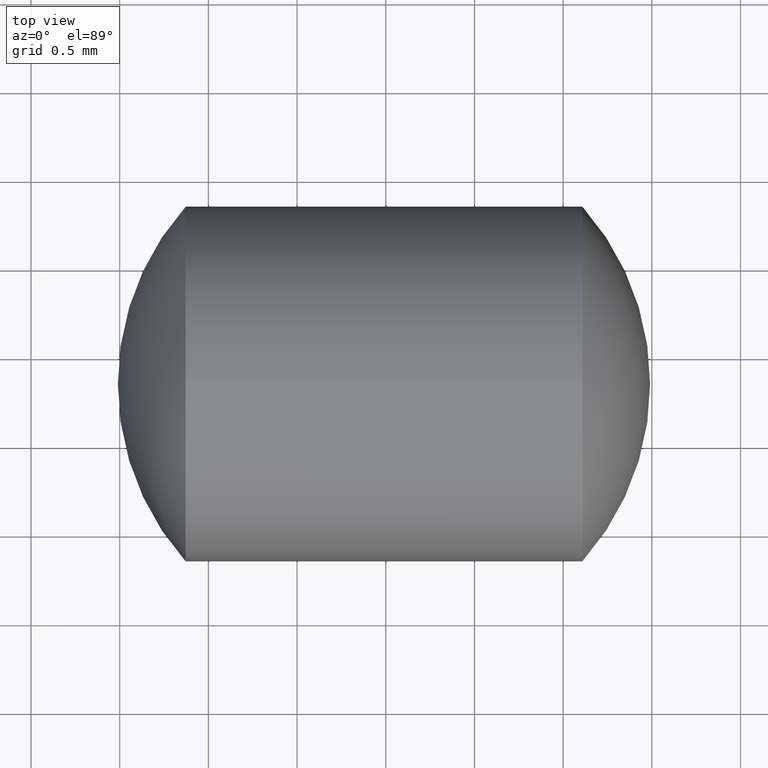
[diagram: clean part render]
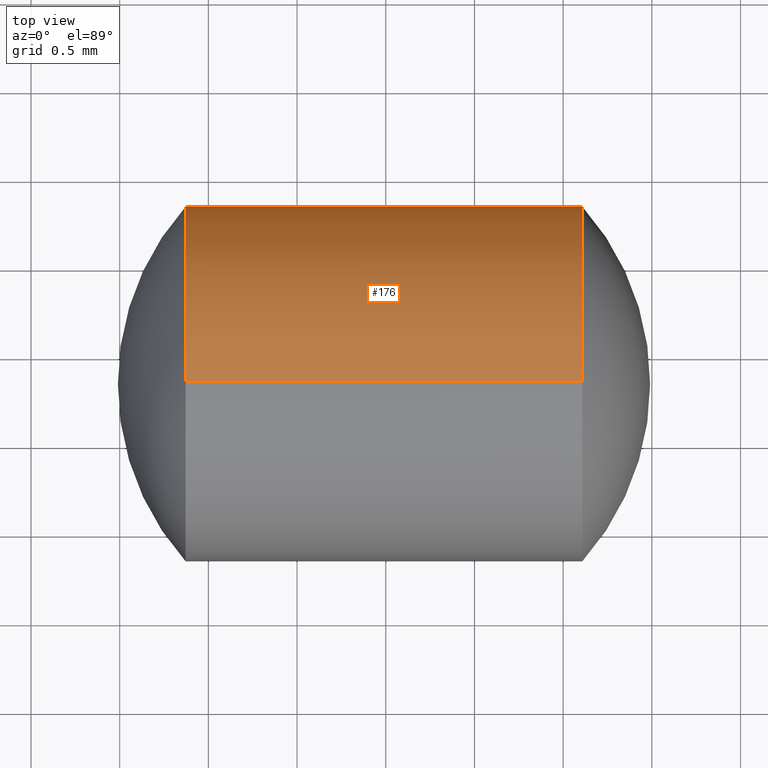
[diagram: same view with one face highlighted and labeled with its STEP entity id]
A machine part, top view. The second image highlights one B-rep face of the part: STEP entity #176.
In plain terms, the highlighted cylindrical surface (partial cylindrical patch) has radius 1 mm, axis along (-1, -0, -0).
Its self-contained STEP definition (entity closure, byte-faithful):
#3 = CARTESIAN_POINT ( 'NONE',  ( 232.2484920441100100, 133.3448637497280600, -1.000000000000000900 ) ) ;
#9 = DIRECTION ( 'NONE',  ( 0.0000000000000000000, 0.0000000000000000000, 1.000000000000000000 ) ) ;
#10 = CARTESIAN_POINT ( 'NONE',  ( 232.8719949570514700, 133.3448637497280600, 0.0000000000000000000 ) ) ;
#26 = EDGE_CURVE ( 'NONE', #54, #275, #186, .T. ) ;
#36 = DIRECTION ( 'NONE',  ( 0.0000000000000000000, 0.0000000000000000000, 1.000000000000000000 ) ) ;
#46 = EDGE_CURVE ( 'NONE', #54, #264, #235, .T. ) ;
#50 = AXIS2_PLACEMENT_3D ( 'NONE', #158, #184, #160 ) ;
#53 = CIRCLE ( 'NONE', #213, 1.000000000000000900 ) ;
#54 = VERTEX_POINT ( 'NONE', #337 ) ;
#59 = DIRECTION ( 'NONE',  ( 0.0000000000000000000, 0.0000000000000000000, 1.000000000000000000 ) ) ;
#61 = CARTESIAN_POINT ( 'NONE',  ( 232.8719949570514700, 133.3448637497280600, 1.000000000000000900 ) ) ;
#81 = ORIENTED_EDGE ( 'NONE', *, *, #170, .F. ) ;
#84 = DIRECTION ( 'NONE',  ( 0.0000000000000000000, 0.0000000000000000000, 1.000000000000000000 ) ) ;
#89 = LINE ( 'NONE', #3, #286 ) ;
#98 = EDGE_CURVE ( 'NONE', #150, #331, #89, .T. ) ;
#104 = CARTESIAN_POINT ( 'NONE',  ( 235.1080629345512700, 133.3448637497280600, -1.000000000000000900 ) ) ;
#111 = DIRECTION ( 'NONE',  ( -1.000000000000000000, -0.0000000000000000000, -0.0000000000000000000 ) ) ;
#122 = AXIS2_PLACEMENT_3D ( 'NONE', #218, #244, #84 ) ;
#123 = ORIENTED_EDGE ( 'NONE', *, *, #336, .T. ) ;
#139 = FACE_OUTER_BOUND ( 'NONE', #153, .T. ) ;
#150 = VERTEX_POINT ( 'NONE', #104 ) ;
#153 = EDGE_LOOP ( 'NONE', ( #123, #310, #81, #338, #292, #179 ) ) ;
#158 = CARTESIAN_POINT ( 'NONE',  ( 235.1080629345512700, 133.3448637497280600, 0.0000000000000000000 ) ) ;
#160 = DIRECTION ( 'NONE',  ( 0.0000000000000000000, 0.0000000000000000000, 1.000000000000000000 ) ) ;
#166 = CARTESIAN_POINT ( 'NONE',  ( 232.8719949570514700, 133.3448637497280600, -1.000000000000000900 ) ) ;
#167 = DIRECTION ( 'NONE',  ( -1.000000000000000000, -0.0000000000000000000, -0.0000000000000000000 ) ) ;
#170 = EDGE_CURVE ( 'NONE', #227, #331, #332, .T. ) ;
#173 = AXIS2_PLACEMENT_3D ( 'NONE', #220, #167, #59 ) ;
#176 = ADVANCED_FACE ( 'NONE', ( #139 ), #321, .T. ) ;
#179 = ORIENTED_EDGE ( 'NONE', *, *, #26, .T. ) ;
#184 = DIRECTION ( 'NONE',  ( -1.000000000000000000, -0.0000000000000000000, -0.0000000000000000000 ) ) ;
#186 = CIRCLE ( 'NONE', #50, 1.000000000000000900 ) ;
#188 = CARTESIAN_POINT ( 'NONE',  ( 235.1080629345512700, 134.3448637497280600, 0.0000000000000000000 ) ) ;
#197 = CARTESIAN_POINT ( 'NONE',  ( 235.1080629345512700, 133.3448637497280600, 0.0000000000000000000 ) ) ;
#213 = AXIS2_PLACEMENT_3D ( 'NONE', #10, #271, #36 ) ;
#218 = CARTESIAN_POINT ( 'NONE',  ( 232.8719949570514700, 133.3448637497280600, 0.0000000000000000000 ) ) ;
#220 = CARTESIAN_POINT ( 'NONE',  ( 232.2484920441100100, 133.3448637497280600, 0.0000000000000000000 ) ) ;
#223 = CARTESIAN_POINT ( 'NONE',  ( 232.8719949570514700, 134.3448637497280300, 0.0000000000000000000 ) ) ;
#227 = VERTEX_POINT ( 'NONE', #223 ) ;
#233 = AXIS2_PLACEMENT_3D ( 'NONE', #197, #111, #9 ) ;
#235 = LINE ( 'NONE', #314, #297 ) ;
#244 = DIRECTION ( 'NONE',  ( -1.000000000000000000, -0.0000000000000000000, -0.0000000000000000000 ) ) ;
#264 = VERTEX_POINT ( 'NONE', #61 ) ;
#266 = DIRECTION ( 'NONE',  ( -1.000000000000000000, -0.0000000000000000000, -0.0000000000000000000 ) ) ;
#270 = CIRCLE ( 'NONE', #233, 1.000000000000000900 ) ;
#271 = DIRECTION ( 'NONE',  ( -1.000000000000000000, -0.0000000000000000000, -0.0000000000000000000 ) ) ;
#275 = VERTEX_POINT ( 'NONE', #188 ) ;
#286 = VECTOR ( 'NONE', #316, 1000.000000000000000 ) ;
#292 = ORIENTED_EDGE ( 'NONE', *, *, #46, .F. ) ;
#297 = VECTOR ( 'NONE', #266, 1000.000000000000000 ) ;
#310 = ORIENTED_EDGE ( 'NONE', *, *, #98, .T. ) ;
#311 = EDGE_CURVE ( 'NONE', #264, #227, #53, .T. ) ;
#314 = CARTESIAN_POINT ( 'NONE',  ( 232.2484920441100100, 133.3448637497280600, 1.000000000000000900 ) ) ;
#316 = DIRECTION ( 'NONE',  ( -1.000000000000000000, -0.0000000000000000000, -0.0000000000000000000 ) ) ;
#321 = CYLINDRICAL_SURFACE ( 'NONE', #173, 1.000000000000000900 ) ;
#331 = VERTEX_POINT ( 'NONE', #166 ) ;
#332 = CIRCLE ( 'NONE', #122, 1.000000000000000900 ) ;
#336 = EDGE_CURVE ( 'NONE', #275, #150, #270, .T. ) ;
#337 = CARTESIAN_POINT ( 'NONE',  ( 235.1080629345512700, 133.3448637497280600, 1.000000000000000900 ) ) ;
#338 = ORIENTED_EDGE ( 'NONE', *, *, #311, .F. ) ;